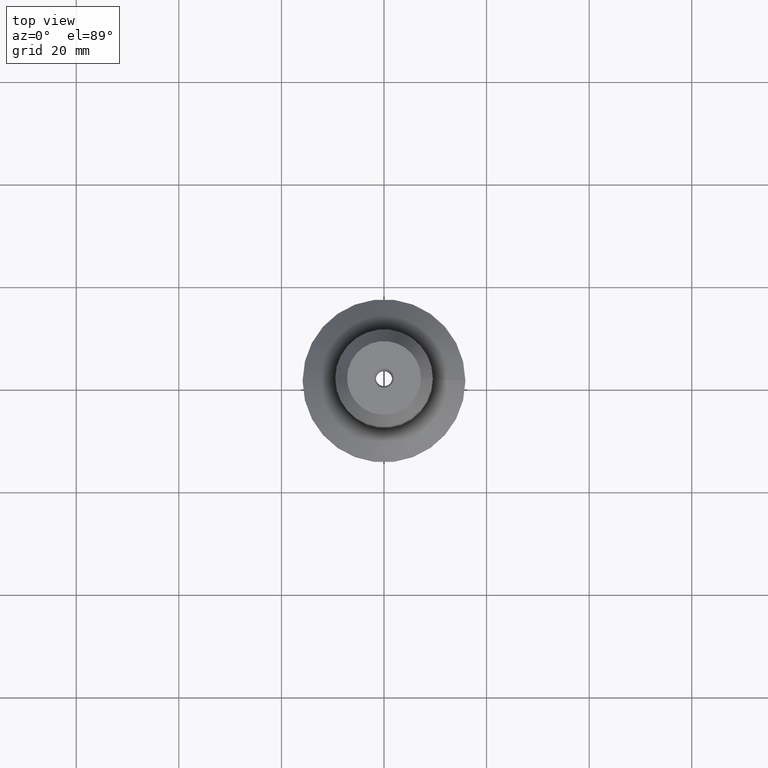
[diagram: clean part render]
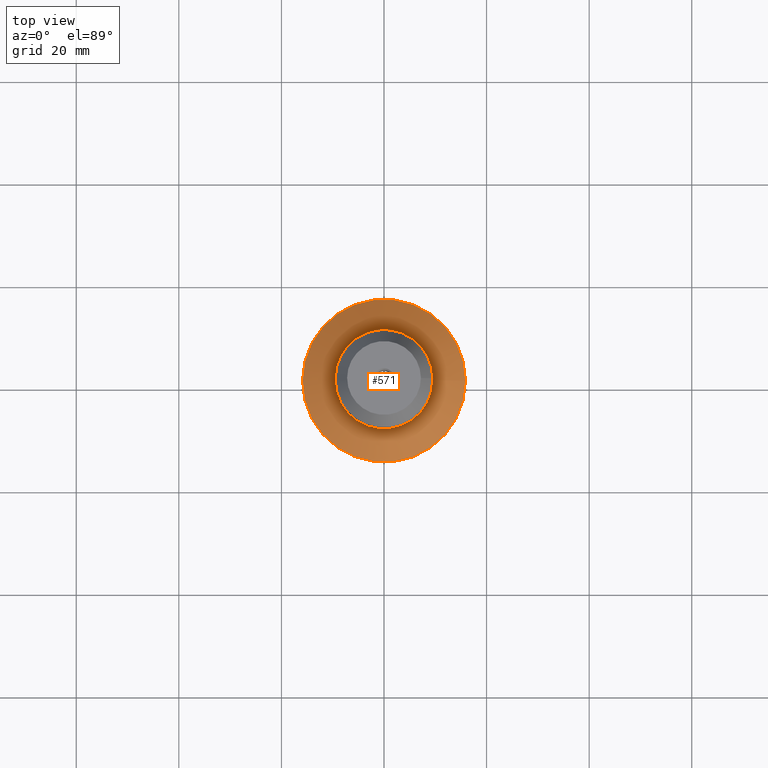
[diagram: same view with one face highlighted and labeled with its STEP entity id]
A machine part, top view. The second image highlights one B-rep face of the part: STEP entity #571.
In plain terms, the highlighted conical surface has half-angle 45 deg.
Its self-contained STEP definition (entity closure, byte-faithful):
#54 = AXIS2_PLACEMENT_3D ( 'NONE', #521, #322, #188 ) ;
#81 = EDGE_CURVE ( 'NONE', #763, #763, #196, .T. ) ;
#99 = DIRECTION ( 'NONE',  ( -1.000000000000000000, 0.0000000000000000000, 0.0000000000000000000 ) ) ;
#137 = CIRCLE ( 'NONE', #612, 9.499999999999953815 ) ;
#160 = FACE_OUTER_BOUND ( 'NONE', #537, .T. ) ;
#188 = DIRECTION ( 'NONE',  ( 1.000000000000000000, 0.0000000000000000000, 0.0000000000000000000 ) ) ;
#193 = VERTEX_POINT ( 'NONE', #657 ) ;
#196 = CIRCLE ( 'NONE', #54, 15.87499999999994493 ) ;
#246 = ORIENTED_EDGE ( 'NONE', *, *, #679, .F. ) ;
#268 = AXIS2_PLACEMENT_3D ( 'NONE', #585, #479, #99 ) ;
#322 = DIRECTION ( 'NONE',  ( -0.0000000000000000000, -0.0000000000000000000, 1.000000000000000000 ) ) ;
#398 = DIRECTION ( 'NONE',  ( -0.0000000000000000000, -0.0000000000000000000, 1.000000000000000000 ) ) ;
#402 = DIRECTION ( 'NONE',  ( 1.000000000000000000, 0.0000000000000000000, 0.0000000000000000000 ) ) ;
#404 = EDGE_LOOP ( 'NONE', ( #246 ) ) ;
#479 = DIRECTION ( 'NONE',  ( 0.0000000000000000000, 0.0000000000000000000, -1.000000000000000000 ) ) ;
#516 = CARTESIAN_POINT ( 'NONE',  ( 15.87499999999994493, 0.0000000000000000000, 3.200000000000202682 ) ) ;
#521 = CARTESIAN_POINT ( 'NONE',  ( 0.0000000000000000000, 0.0000000000000000000, 3.200000000000202682 ) ) ;
#537 = EDGE_LOOP ( 'NONE', ( #800 ) ) ;
#571 = ADVANCED_FACE ( 'NONE', ( #772, #160 ), #626, .T. ) ;
#585 = CARTESIAN_POINT ( 'NONE',  ( 0.0000000000000000000, 0.0000000000000000000, 3.200000000000202682 ) ) ;
#612 = AXIS2_PLACEMENT_3D ( 'NONE', #666, #398, #402 ) ;
#626 = CONICAL_SURFACE ( 'NONE', #268, 15.87499999999994493, 0.7853981633974482790 ) ;
#657 = CARTESIAN_POINT ( 'NONE',  ( 9.499999999999953815, 0.0000000000000000000, 9.575000000000194689 ) ) ;
#666 = CARTESIAN_POINT ( 'NONE',  ( 0.0000000000000000000, 0.0000000000000000000, 9.575000000000194689 ) ) ;
#679 = EDGE_CURVE ( 'NONE', #193, #193, #137, .T. ) ;
#763 = VERTEX_POINT ( 'NONE', #516 ) ;
#772 = FACE_BOUND ( 'NONE', #404, .T. ) ;
#800 = ORIENTED_EDGE ( 'NONE', *, *, #81, .T. ) ;